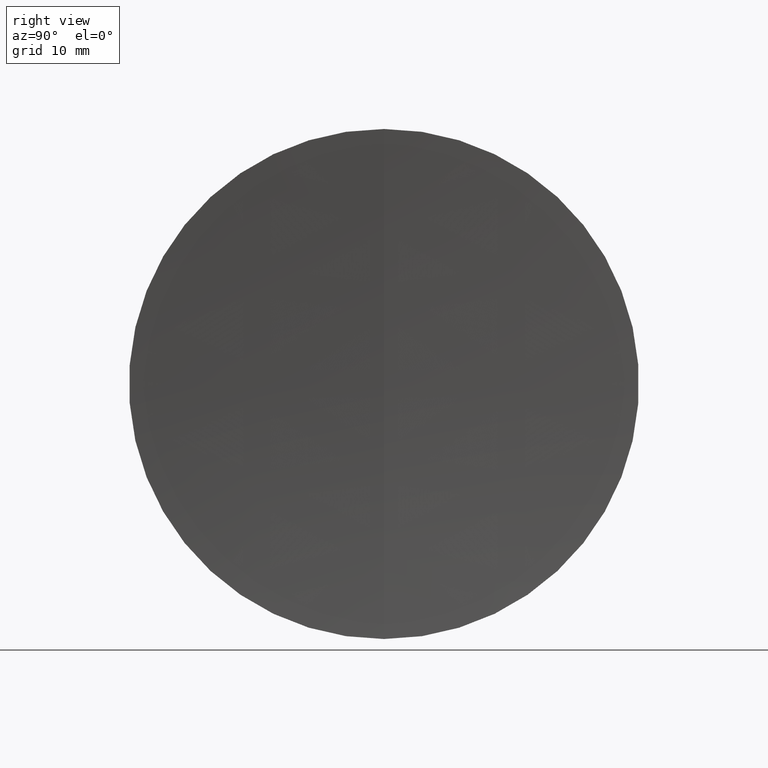
[diagram: clean part render]
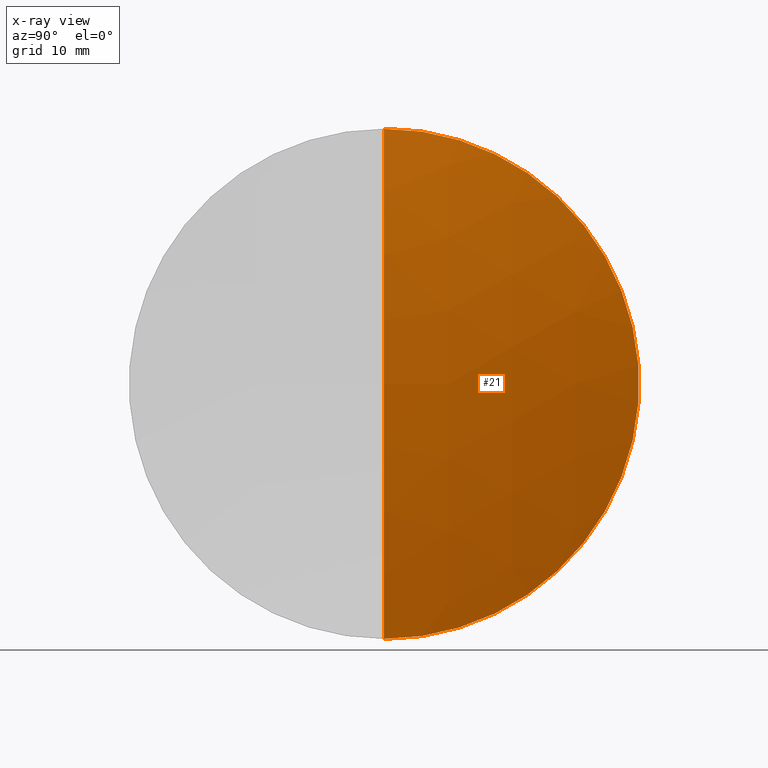
[diagram: x-ray — body ghosted, one internal face saturated and labeled with its STEP entity id]
A machine part, right view, then the same camera in x-ray: the body is ghosted and one INTERNAL B-rep face — a face not visible from any outside direction — is saturated and labeled: STEP entity #21.
In plain terms, the highlighted spherical surface has radius 112.21 mm.
Its self-contained STEP definition (entity closure, byte-faithful):
#16 = DIRECTION ( 'NONE',  ( 0.0000000000000000000, 1.000000000000000000, 0.0000000000000000000 ) ) ;
#21 = ADVANCED_FACE ( 'NONE', ( #36 ), #306, .T. ) ;
#28 = AXIS2_PLACEMENT_3D ( 'NONE', #196, #117, #81 ) ;
#30 = DIRECTION ( 'NONE',  ( 0.0000000000000000000, 0.0000000000000000000, -1.000000000000000000 ) ) ;
#31 = ORIENTED_EDGE ( 'NONE', *, *, #248, .T. ) ;
#36 = FACE_OUTER_BOUND ( 'NONE', #85, .T. ) ;
#37 = CARTESIAN_POINT ( 'NONE',  ( 44.36476896124682400, 0.0000000000000000000, 3.080629158308288600E-014 ) ) ;
#44 = VERTEX_POINT ( 'NONE', #223 ) ;
#69 = CARTESIAN_POINT ( 'NONE',  ( 153.6621801840200900, 3.110602869834273700E-015, -25.39999999999997000 ) ) ;
#75 = AXIS2_PLACEMENT_3D ( 'NONE', #135, #159, #317 ) ;
#76 = ORIENTED_EDGE ( 'NONE', *, *, #216, .F. ) ;
#81 = DIRECTION ( 'NONE',  ( 0.0000000000000000000, 0.0000000000000000000, 1.000000000000000000 ) ) ;
#85 = EDGE_LOOP ( 'NONE', ( #252, #31, #76 ) ) ;
#87 = EDGE_CURVE ( 'NONE', #97, #44, #229, .T. ) ;
#97 = VERTEX_POINT ( 'NONE', #307 ) ;
#117 = DIRECTION ( 'NONE',  ( -1.000000000000000000, -0.0000000000000000000, -0.0000000000000000000 ) ) ;
#120 = DIRECTION ( 'NONE',  ( 0.0000000000000000000, -1.000000000000000000, 0.0000000000000000000 ) ) ;
#123 = AXIS2_PLACEMENT_3D ( 'NONE', #37, #16, #331 ) ;
#135 = CARTESIAN_POINT ( 'NONE',  ( 44.36476896124682400, 0.0000000000000000000, 3.080629158308288600E-014 ) ) ;
#139 = VERTEX_POINT ( 'NONE', #69 ) ;
#159 = DIRECTION ( 'NONE',  ( -0.0000000000000000000, 1.000000000000000000, 1.224646799147353200E-016 ) ) ;
#169 = CARTESIAN_POINT ( 'NONE',  ( 44.36476896124682400, 0.0000000000000000000, 3.080629158308288600E-014 ) ) ;
#178 = CIRCLE ( 'NONE', #75, 112.2099999999999900 ) ;
#196 = CARTESIAN_POINT ( 'NONE',  ( 153.6621801840200900, 0.0000000000000000000, 0.0000000000000000000 ) ) ;
#216 = EDGE_CURVE ( 'NONE', #44, #139, #255, .T. ) ;
#223 = CARTESIAN_POINT ( 'NONE',  ( 153.6621801840200900, 0.0000000000000000000, 25.39999999999997000 ) ) ;
#229 = CIRCLE ( 'NONE', #238, 112.2099999999999900 ) ;
#238 = AXIS2_PLACEMENT_3D ( 'NONE', #169, #120, #30 ) ;
#248 = EDGE_CURVE ( 'NONE', #97, #139, #178, .T. ) ;
#252 = ORIENTED_EDGE ( 'NONE', *, *, #87, .F. ) ;
#255 = CIRCLE ( 'NONE', #28, 25.39999999999997000 ) ;
#306 = SPHERICAL_SURFACE ( 'NONE', #123, 112.2099999999999900 ) ;
#307 = CARTESIAN_POINT ( 'NONE',  ( 156.5747689612468000, 0.0000000000000000000, 3.767717244969910900E-014 ) ) ;
#317 = DIRECTION ( 'NONE',  ( 0.0000000000000000000, -1.224646799147353200E-016, 1.000000000000000000 ) ) ;
#331 = DIRECTION ( 'NONE',  ( 0.0000000000000000000, 0.0000000000000000000, 1.000000000000000000 ) ) ;